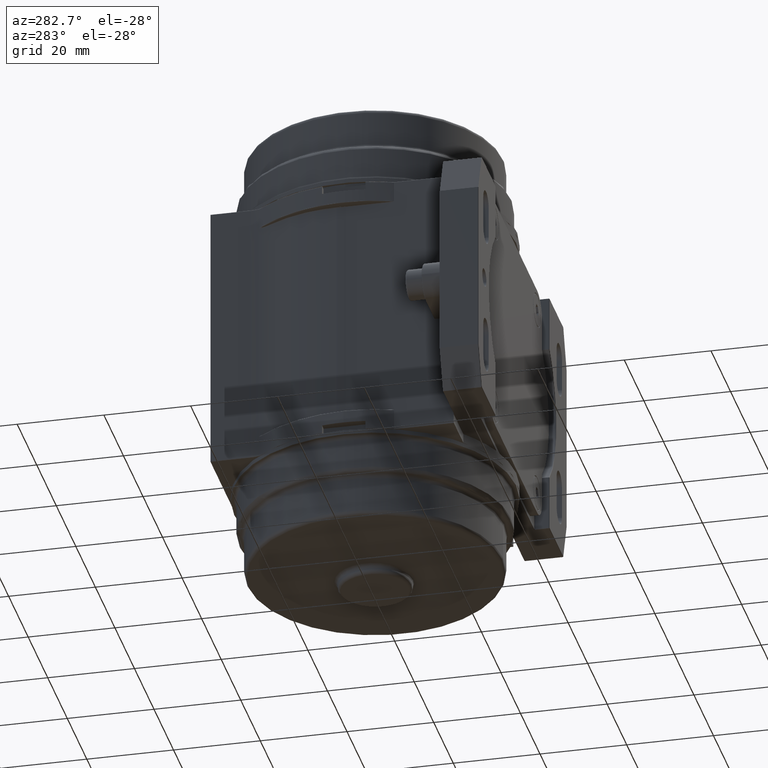
[diagram: clean part render]
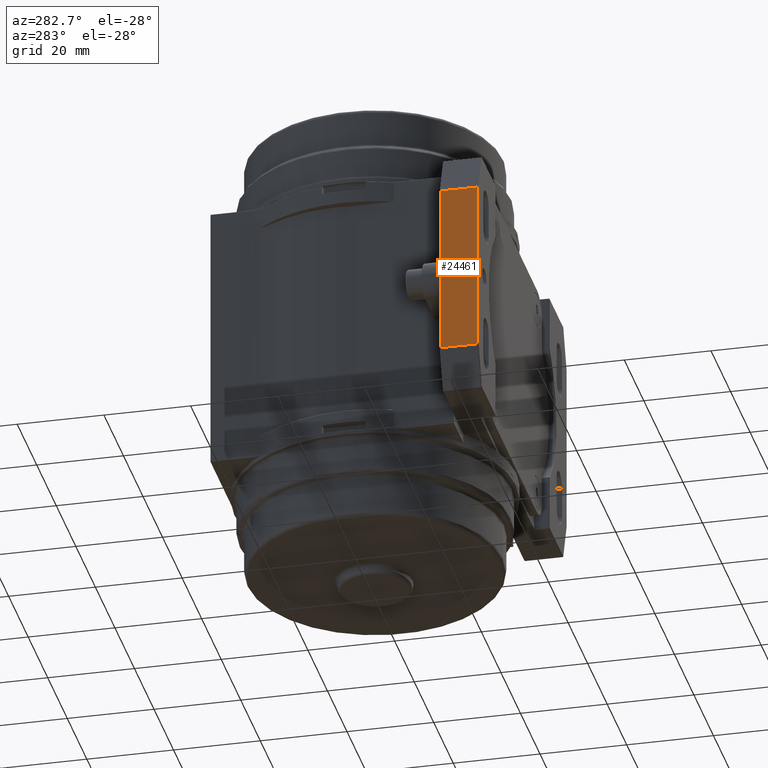
[diagram: same view with one face highlighted and labeled with its STEP entity id]
A machine part, auxiliary view. The second image highlights one B-rep face of the part: STEP entity #24461.
In plain terms, the highlighted planar face has unit normal (1, 0, 0).
Its self-contained STEP definition (entity closure, byte-faithful):
#598 = ORIENTED_EDGE ( 'NONE', *, *, #9467, .T. ) ;
#2303 = EDGE_CURVE ( 'NONE', #15470, #12017, #11499, .T. ) ;
#3116 = EDGE_CURVE ( 'NONE', #12017, #10638, #7862, .T. ) ;
#3548 = CARTESIAN_POINT ( 'NONE',  ( -45.15000000000000600, -34.02249999999999400, 20.00000000000000000 ) ) ;
#4014 = CARTESIAN_POINT ( 'NONE',  ( -45.15000000000000600, -34.02249999999999400, 19.96458705906235000 ) ) ;
#4595 = AXIS2_PLACEMENT_3D ( 'NONE', #3548, #24514, #22873 ) ;
#5471 = VECTOR ( 'NONE', #17877, 1000.000000000000000 ) ;
#6103 = EDGE_LOOP ( 'NONE', ( #7677, #598, #20914, #8107 ) ) ;
#6940 = CARTESIAN_POINT ( 'NONE',  ( -45.15000000000000600, -33.82249999999999800, -19.96458705906235000 ) ) ;
#7421 = LINE ( 'NONE', #7741, #11358 ) ;
#7471 = PLANE ( 'NONE',  #4595 ) ;
#7656 = CARTESIAN_POINT ( 'NONE',  ( -45.15000000000000600, -33.82249999999999800, 19.96458705906235000 ) ) ;
#7677 = ORIENTED_EDGE ( 'NONE', *, *, #3116, .T. ) ;
#7741 = CARTESIAN_POINT ( 'NONE',  ( -45.15000000000000600, -25.22250000000000000, 20.00000000000000000 ) ) ;
#7862 = LINE ( 'NONE', #21568, #5471 ) ;
#8107 = ORIENTED_EDGE ( 'NONE', *, *, #2303, .T. ) ;
#8982 = CARTESIAN_POINT ( 'NONE',  ( -45.15000000000000600, -25.22250000000000000, 19.96458705906235000 ) ) ;
#9340 = DIRECTION ( 'NONE',  ( -0.0000000000000000000, -1.000000000000000000, -0.0000000000000000000 ) ) ;
#9467 = EDGE_CURVE ( 'NONE', #10638, #10067, #24946, .T. ) ;
#9630 = FACE_OUTER_BOUND ( 'NONE', #6103, .T. ) ;
#10067 = VERTEX_POINT ( 'NONE', #8982 ) ;
#10290 = VECTOR ( 'NONE', #9340, 1000.000000000000000 ) ;
#10638 = VERTEX_POINT ( 'NONE', #7656 ) ;
#11358 = VECTOR ( 'NONE', #24938, 1000.000000000000000 ) ;
#11499 = LINE ( 'NONE', #20840, #10290 ) ;
#12017 = VERTEX_POINT ( 'NONE', #6940 ) ;
#15470 = VERTEX_POINT ( 'NONE', #20074 ) ;
#17877 = DIRECTION ( 'NONE',  ( -0.0000000000000000000, -0.0000000000000000000, 1.000000000000000000 ) ) ;
#17996 = VECTOR ( 'NONE', #22384, 1000.000000000000000 ) ;
#20074 = CARTESIAN_POINT ( 'NONE',  ( -45.15000000000000600, -25.22250000000000000, -19.96458705906235000 ) ) ;
#20840 = CARTESIAN_POINT ( 'NONE',  ( -45.15000000000000600, -34.02249999999999400, -19.96458705906235000 ) ) ;
#20914 = ORIENTED_EDGE ( 'NONE', *, *, #24123, .T. ) ;
#21568 = CARTESIAN_POINT ( 'NONE',  ( -45.15000000000000600, -33.82249999999999800, 20.00000000000000000 ) ) ;
#22384 = DIRECTION ( 'NONE',  ( 0.0000000000000000000, 1.000000000000000000, 0.0000000000000000000 ) ) ;
#22873 = DIRECTION ( 'NONE',  ( 0.0000000000000000000, 0.0000000000000000000, -1.000000000000000000 ) ) ;
#24123 = EDGE_CURVE ( 'NONE', #10067, #15470, #7421, .T. ) ;
#24461 = ADVANCED_FACE ( 'NONE', ( #9630 ), #7471, .F. ) ;
#24514 = DIRECTION ( 'NONE',  ( 1.000000000000000000, 0.0000000000000000000, 0.0000000000000000000 ) ) ;
#24938 = DIRECTION ( 'NONE',  ( 0.0000000000000000000, 0.0000000000000000000, -1.000000000000000000 ) ) ;
#24946 = LINE ( 'NONE', #4014, #17996 ) ;